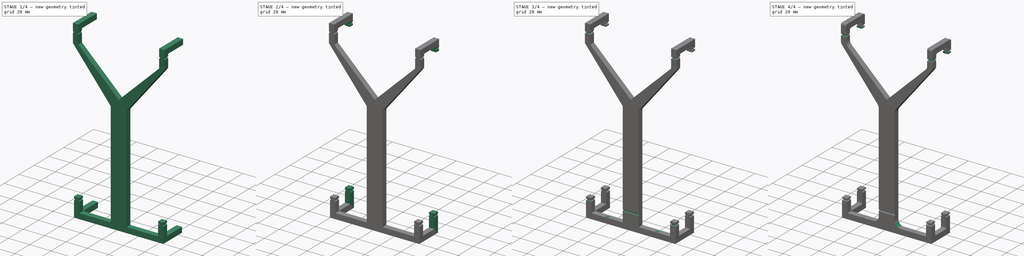
[diagram: build sequence overview — one tinted view per stage of 4, left to right]
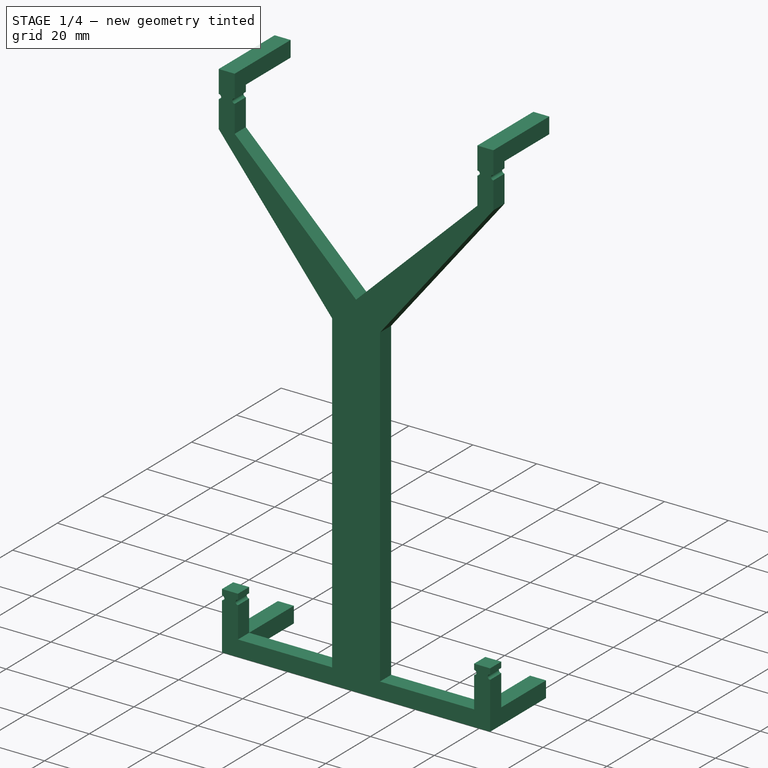
[diagram: stage 1 of 4 — iso view after this stage's code; geometry added in this stage tinted green]
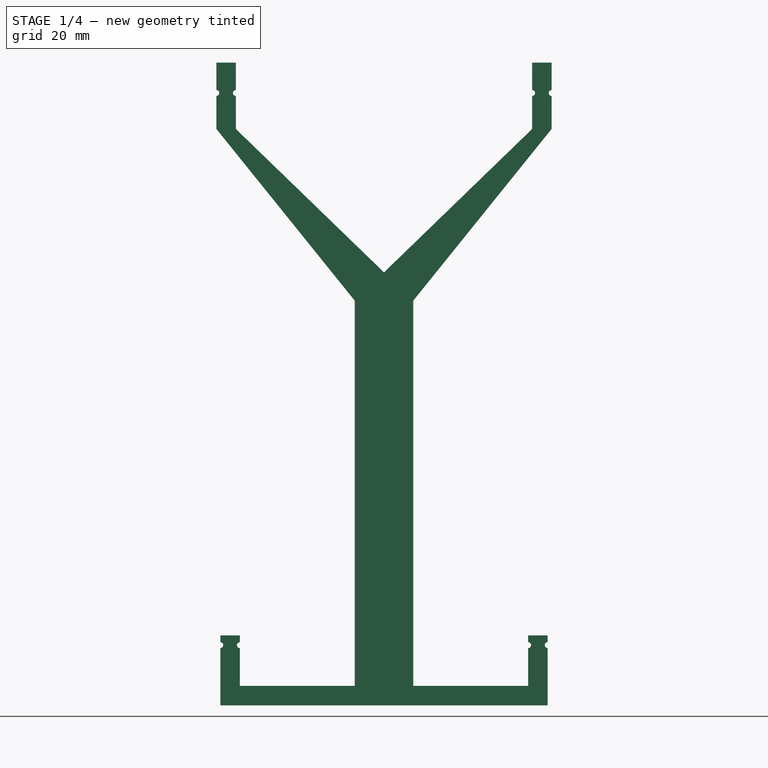
[diagram: stage 1 of 4 — front view after this stage's code; geometry added in this stage tinted green]
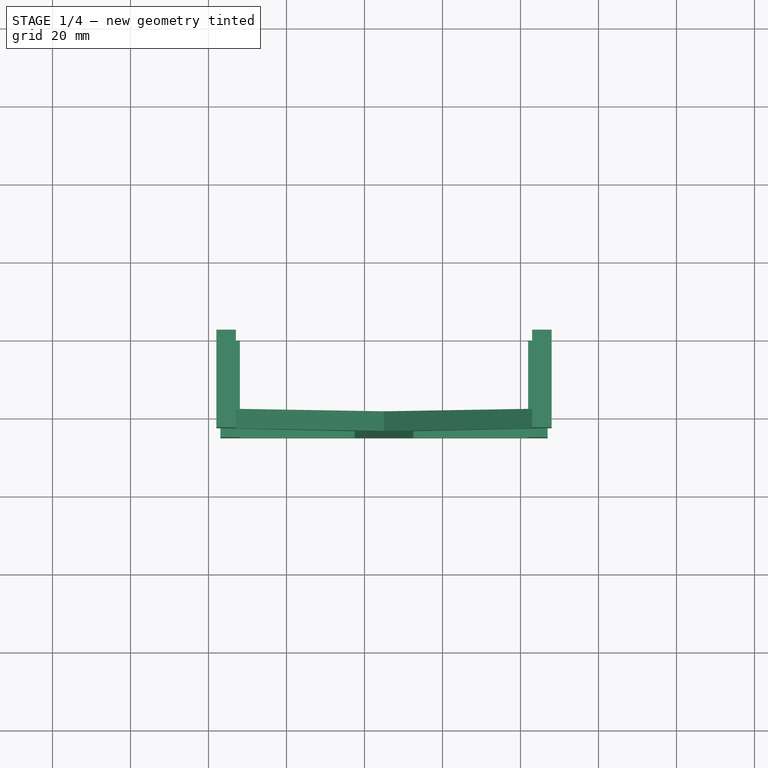
[diagram: stage 1 of 4 — top view after this stage's code; geometry added in this stage tinted green]
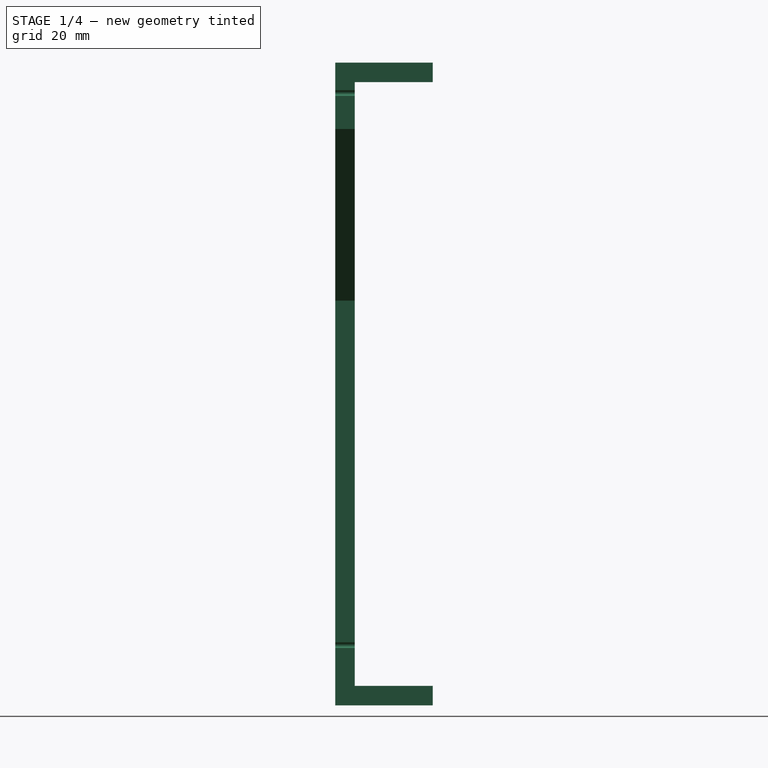
[diagram: stage 1 of 4 — right view after this stage's code; geometry added in this stage tinted green]
FCSTD DOCUMENT  (FreeCAD 1.0R39109 (Git))
Label: Stand_v2
License: All rights reserved
LicenseURL: http://en.wikipedia.org/wiki/All_rights_reserved
objects: Sketcher::SketchObject×8, PartDesign::Pad×5, PartDesign::Fillet×3, PartDesign::Body×2, PartDesign::Pocket×2, PartDesign::ShapeBinder×1, PartDesign::Hole×1
note: 52 computed .brp shape members not serialized (recipe doc carries the construction recipe); baked Part::Feature solids carry a one-line shape summary decoded from their .brp

FEATURE [Sketcher::SketchObject] Sketch
  ArcFitTolerance = 1e-06
  AttachmentSupport = -> [XZ_Plane]
  FullyConstrained = true
  MakeInternals = false
  MapMode = 5
  Placement = pos=(0,0,0) rot=(1,0,0;1.5708rad)
  sketch-geometry (16):
    g0: LineSegment StartX=0 StartY=0 StartZ=0 EndX=90 EndY=0 EndZ=0
    g1: LineSegment StartX=90 StartY=0 StartZ=0 EndX=90 EndY=150 EndZ=0
    g2: LineSegment StartX=90 StartY=150 StartZ=0 EndX=0 EndY=150 EndZ=0
    g3: LineSegment StartX=0 StartY=150 StartZ=0 EndX=0 EndY=0 EndZ=0
    g4: LineSegment [constr] StartX=3.5 StartY=145 StartZ=0 EndX=3.5 EndY=5 EndZ=0
    g5: LineSegment [constr] StartX=3.5 StartY=5 StartZ=0 EndX=86.5 EndY=5 EndZ=0
    g6: LineSegment [constr] StartX=86.5 StartY=5 StartZ=0 EndX=86.5 EndY=145 EndZ=0
    g7: LineSegment [constr] StartX=86.5 StartY=145 StartZ=0 EndX=3.5 EndY=145 EndZ=0
    g8: LineSegment [constr] StartX=86.5 StartY=145 StartZ=0 EndX=86.5 EndY=150 EndZ=0
    g9: LineSegment [constr] StartX=86.5 StartY=5 StartZ=0 EndX=86.5 EndY=0 EndZ=0
    g10: LineSegment [constr] StartX=3.5 StartY=145 StartZ=0 EndX=0 EndY=145 EndZ=0
    g11: LineSegment [constr] StartX=86.5 StartY=145 StartZ=0 EndX=90 EndY=145 EndZ=0
    g12: Circle CenterX=3.5 CenterY=145 CenterZ=0 NormalX=0 NormalY=0 NormalZ=1 AngleXU=0 Radius=1.5
    g13: Circle CenterX=86.5 CenterY=145 CenterZ=0 NormalX=0 NormalY=0 NormalZ=1 AngleXU=0 Radius=1.5
    g14: Circle CenterX=86.5 CenterY=5 CenterZ=0 NormalX=0 NormalY=0 NormalZ=1 AngleXU=0 Radius=1.5
    g15: Circle CenterX=3.5 CenterY=5 CenterZ=0 NormalX=0 NormalY=0 NormalZ=1 AngleXU=0 Radius=1.5
  constraints (43):
    c: Coincident(g0,g1)
    c: Coincident(g1,g2)
    c: Coincident(g2,g3)
    c: Coincident(g3,g0)
    c: Horizontal(g0)
    c: Horizontal(g2)
    c: Vertical(g1)
    c: Vertical(g3)
    c: Coincident(g0,g-1)
    c: DistanceX(g2,g2) = 90
    c: DistanceY(g3,g3) = 150
    c: Coincident(g4,g5)
    c: Coincident(g5,g6)
    c: Coincident(g6,g7)
    c: Coincident(g7,g4)
    c: Vertical(g4)
    c: Vertical(g6)
    c: Horizontal(g5)
    c: Horizontal(g7)
    c: Distance(g2,g7) = 5
    c: Coincident(g8,g6)
    c: PointOnObject(g8,g2)
    c: Vertical(g8)
    c: Coincident(g9,g5)
    c: PointOnObject(g9,g0)
    c: Vertical(g9)
    c: Equal(g9,g8)
    c: Coincident(g10,g4)
    c: PointOnObject(g10,g3)
    c: Horizontal(g10)
    c: Coincident(g11,g6)
    c: PointOnObject(g11,g1)
    c: Horizontal(g11)
    c: Equal(g10,g11)
    c: Distance(g11,g11) = 3.5
    c: Coincident(g12,g4)
    c: Coincident(g13,g6)
    c: Coincident(g14,g5)
    c: Coincident(g15,g4)
    c: Diameter(g15) = 3
    c: Equal(g15,g14)
    c: Equal(g14,g13)
    c: Equal(g13,g12)
FEATURE [PartDesign::Pad] Pad
  Direction = (0,-1,2e-16)
  Length = 1
  Length2 = 10
  Placement = pos=(0,0,0) rot=(1,0,0;1.5708rad)
  Profile = -> Sketch
  ReferenceAxis = -> Sketch [N_Axis]
  Refine = true
  Suppressed = false
  Type = 0
FEATURE [PartDesign::Body] Body  label="Platine"
  AllowCompound = false
  Group = -> [Sketch,Pad]
  Origin = -> Origin
  Placement = pos=(0,8,0) rot=(0,0,1;0rad)
  Tip = -> Pad
FEATURE [PartDesign::ShapeBinder] ShapeBinder
  Support = -> [Pad]
  TraceSupport = false
FEATURE [Sketcher::SketchObject] Sketch001
  ArcFitTolerance = 1e-06
  AttachmentSupport = -> [XZ_Plane001]
  ExternalGeometry = -> [ShapeBinder]
  FullyConstrained = false
  MakeInternals = false
  MapMode = 5
  Placement = pos=(0,0,0) rot=(1,0,0;1.5708rad)
  sketch-geometry (103):
    g0: LineSegment [constr] StartX=37.5 StartY=96.7528 StartZ=0 EndX=52.5 EndY=96.7528 EndZ=0
    g1: GeomPoint [constr] X=45 Y=1.08448 Z=0
    g2: LineSegment [constr] StartX=37.5 StartY=96.7528 StartZ=0 EndX=2.01994 EndY=140.78 EndZ=0
    g3: LineSegment [constr] StartX=2.01994 StartY=140.78 StartZ=0 EndX=7.01994 EndY=140.78 EndZ=0
    g4: LineSegment [constr] StartX=7.01994 StartY=140.78 StartZ=0 EndX=52.5 EndY=96.7528 EndZ=0
    g5: LineSegment [constr] StartX=2.01994 StartY=140.78 StartZ=0 EndX=7.01994 EndY=140.78 EndZ=0
    g6: LineSegment [constr] StartX=7.01994 StartY=140.78 StartZ=0 EndX=7.01994 EndY=157.78 EndZ=0
    g7: LineSegment [constr] StartX=7.01994 StartY=157.78 StartZ=0 EndX=2.01994 EndY=157.78 EndZ=0
    g8: LineSegment [constr] StartX=2.01994 StartY=157.78 StartZ=0 EndX=2.01994 EndY=140.78 EndZ=0
    g9: LineSegment [constr] StartX=37.5 StartY=96.7528 StartZ=0 EndX=82.9801 EndY=140.78 EndZ=0
    g10: LineSegment [constr] StartX=82.9801 StartY=140.78 StartZ=0 EndX=87.9801 EndY=140.78 EndZ=0
    g11: LineSegment [constr] StartX=87.9801 StartY=140.78 StartZ=0 EndX=52.5 EndY=96.7528 EndZ=0
    g12: LineSegment [constr] StartX=82.9801 StartY=140.78 StartZ=0 EndX=82.9801 EndY=157.78 EndZ=0
    g13: LineSegment [constr] StartX=82.9801 StartY=157.78 StartZ=0 EndX=87.9801 EndY=157.78 EndZ=0
    g14: LineSegment [constr] StartX=87.9801 StartY=157.78 StartZ=0 EndX=87.9801 EndY=140.78 EndZ=0
    g15: LineSegment [constr] StartX=37.5 StartY=-2 StartZ=0 EndX=52.5 EndY=-2 EndZ=0
    g16: LineSegment StartX=37.5 StartY=-2 StartZ=0 EndX=37.5 EndY=96.7528 EndZ=0
    g17: LineSegment StartX=37.5 StartY=96.7528 StartZ=0 EndX=2.01994 EndY=140.78 EndZ=0
    g18: LineSegment [constr] StartX=2.01994 StartY=140.78 StartZ=0 EndX=2.01994 EndY=157.78 EndZ=0
    g19: LineSegment StartX=2.01994 StartY=157.78 StartZ=0 EndX=7.01994 EndY=157.78 EndZ=0
    g20: LineSegment [constr] StartX=7.01994 StartY=157.78 StartZ=0 EndX=7.01994 EndY=140.78 EndZ=0
    g21: LineSegment StartX=7.01994 StartY=140.78 StartZ=0 EndX=45 EndY=104.013 EndZ=0
    g22: LineSegment StartX=45 StartY=104.013 StartZ=0 EndX=82.9801 EndY=140.78 EndZ=0
    g23: LineSegment StartX=82.9801 StartY=157.78 StartZ=0 EndX=87.9801 EndY=157.78 EndZ=0
    g24: LineSegment [constr] StartX=7.01994 StartY=157.78 StartZ=0 EndX=82.9801 EndY=157.78 EndZ=0
    g25: LineSegment [constr] StartX=82.9801 StartY=140.78 StartZ=0 EndX=7.01994 EndY=140.78 EndZ=0
    g26: LineSegment StartX=87.9801 StartY=140.78 StartZ=0 EndX=52.5 EndY=96.7528 EndZ=0
    g27: LineSegment StartX=52.5 StartY=96.7528 StartZ=0 EndX=52.5 EndY=-2 EndZ=0
    g28: LineSegment [constr] StartX=37.5 StartY=4.16896 StartZ=0 EndX=52.5 EndY=4.16896 EndZ=0
    g29: LineSegment [constr] StartX=37.5 StartY=-2 StartZ=0 EndX=52.5 EndY=4.16896 EndZ=0
    g30: LineSegment [constr] StartX=37.5 StartY=4.16896 StartZ=0 EndX=52.5 EndY=-2 EndZ=0
    g31: LineSegment [constr] StartX=3.03988 StartY=5.94077 StartZ=0 EndX=3.03988 EndY=-7 EndZ=0
    g32: LineSegment [constr] StartX=86.9601 StartY=-0.810335 StartZ=0 EndX=86.9601 EndY=-7 EndZ=0
    g33: LineSegment [constr] StartX=86.9601 StartY=-7 StartZ=0 EndX=3.03988 EndY=-7 EndZ=0
    g34: LineSegment StartX=3.03988 StartY=-2 StartZ=0 EndX=3.03988 EndY=-7 EndZ=0
    g35: LineSegment StartX=3.03988 StartY=-7 StartZ=0 EndX=86.9601 EndY=-7 EndZ=0
    g36: LineSegment StartX=86.9601 StartY=-7 StartZ=0 EndX=86.9601 EndY=-2 EndZ=0
    g37: LineSegment [constr] StartX=86.9601 StartY=-2 StartZ=0 EndX=52.5 EndY=-2 EndZ=0
    g38: LineSegment [constr] StartX=37.5 StartY=-2 StartZ=0 EndX=3.03988 EndY=-2 EndZ=0
    g39: LineSegment [constr] StartX=86.9601 StartY=-2 StartZ=0 EndX=86.9601 EndY=10.9408 EndZ=0
    g40: LineSegment [constr] StartX=86.9601 StartY=10.9408 StartZ=0 EndX=81.9601 EndY=10.9408 EndZ=0
    g41: LineSegment [constr] StartX=81.9601 StartY=10.9408 StartZ=0 EndX=81.9601 EndY=-2 EndZ=0
    g42: LineSegment [constr] StartX=81.9601 StartY=-2 StartZ=0 EndX=86.9601 EndY=-2 EndZ=0
    g43: LineSegment [constr] StartX=3.79422 StartY=-2 StartZ=0 EndX=8.03988 EndY=-2 EndZ=0
    g44: LineSegment [constr] StartX=8.03988 StartY=-2 StartZ=0 EndX=8.03988 EndY=10.9408 EndZ=0
    g45: LineSegment [constr] StartX=8.03988 StartY=10.9408 StartZ=0 EndX=81.9601 EndY=10.9408 EndZ=0
    g46: LineSegment [constr] StartX=86.9601 StartY=-2 StartZ=0 EndX=86.9601 EndY=10.9408 EndZ=0
    g47: LineSegment StartX=86.9601 StartY=10.9408 StartZ=0 EndX=81.9601 EndY=10.9408 EndZ=0
    g48: LineSegment StartX=81.9601 StartY=-2 StartZ=0 EndX=52.5 EndY=-2 EndZ=0
    g49: LineSegment StartX=37.5 StartY=-2 StartZ=0 EndX=8.03988 EndY=-2 EndZ=0
    g50: LineSegment [constr] StartX=8.03988 StartY=-2 StartZ=0 EndX=8.03988 EndY=10.9408 EndZ=0
    g51: LineSegment StartX=8.03988 StartY=10.9408 StartZ=0 EndX=3.03988 EndY=10.9408 EndZ=0
    g52: LineSegment [constr] StartX=3.03988 StartY=10.9408 StartZ=0 EndX=3.03988 EndY=-2 EndZ=0
    g53: LineSegment [constr] StartX=81.9601 StartY=-2 StartZ=0 EndX=81.9601 EndY=10.9408 EndZ=0
    g54: GeomPoint [constr] X=86.9601 Y=5.94077 Z=0
    g55: LineSegment [constr] StartX=86.9601 StartY=5.94077 StartZ=0 EndX=81.9601 EndY=10.9408 EndZ=0
    g56: GeomPoint [constr] X=82.9801 Y=145.78 Z=0
    g57: GeomPoint [constr] X=7.01994 Y=145.78 Z=0
    g58: LineSegment [constr] StartX=2.01994 StartY=140.78 StartZ=0 EndX=7.01994 EndY=145.78 EndZ=0
    g59: Circle [constr] CenterX=3.5 CenterY=145 CenterZ=0 NormalX=0 NormalY=0 NormalZ=1 AngleXU=0 Radius=0.779617
    g60: LineSegment [constr] StartX=3.5 StartY=5 StartZ=0 EndX=3.5 EndY=145 EndZ=0
    g61: LineSegment [constr] StartX=3.5 StartY=145 StartZ=0 EndX=86.5 EndY=145 EndZ=0
    g62: LineSegment [constr] StartX=86.5 StartY=5 StartZ=0 EndX=3.5 EndY=145 EndZ=0
    g63: GeomPoint [constr] X=4.51994 Y=143.28 Z=0
    g64: LineSegment [constr] StartX=8.03988 StartY=10.9408 StartZ=0 EndX=3.03988 EndY=5.94077 EndZ=0
    g65: GeomPoint [constr] X=5.53988 Y=8.44077 Z=0
    g66: LineSegment [constr] StartX=82.9801 StartY=145.78 StartZ=0 EndX=87.9801 EndY=140.78 EndZ=0
    g67: GeomPoint [constr] X=84.4601 Y=8.44077 Z=0
    g68: LineSegment [constr] StartX=3.5 StartY=5 StartZ=0 EndX=86.5 EndY=145 EndZ=0
    g69: GeomPoint [constr] X=85.4801 Y=143.28 Z=0
    g70: GeomPoint [constr] X=45 Y=10.9408 Z=0
    g71: LineSegment [constr] StartX=45 StartY=1.08448 StartZ=0 EndX=45 EndY=10.9408 EndZ=0
    g72: LineSegment [constr] StartX=7.01994 StartY=152.78 StartZ=0 EndX=2.01994 EndY=152.78 EndZ=0
    g73: LineSegment [constr] StartX=7.01994 StartY=145.78 StartZ=0 EndX=2.01994 EndY=145.78 EndZ=0
    g74: LineSegment StartX=7.01994 StartY=140.78 StartZ=0 EndX=7.01994 EndY=149.25 EndZ=0
    g75: LineSegment StartX=7.01994 StartY=150.75 StartZ=0 EndX=7.01994 EndY=157.78 EndZ=0
    g76: LineSegment StartX=2.01994 StartY=150.75 StartZ=0 EndX=2.01994 EndY=157.78 EndZ=0
    g77: LineSegment StartX=2.01994 StartY=140.78 StartZ=0 EndX=2.01994 EndY=149.25 EndZ=0
    g78: LineSegment StartX=82.9801 StartY=157.78 StartZ=0 EndX=82.9801 EndY=150.75 EndZ=0
    g79: LineSegment StartX=87.9801 StartY=157.78 StartZ=0 EndX=87.9801 EndY=150.75 EndZ=0
    g80: LineSegment [constr] StartX=87.9801 StartY=150.75 StartZ=0 EndX=2.01994 EndY=150.75 EndZ=0
    g81: LineSegment StartX=87.9801 StartY=140.78 StartZ=0 EndX=87.9801 EndY=149.25 EndZ=0
    g82: LineSegment StartX=82.9801 StartY=140.78 StartZ=0 EndX=82.9801 EndY=149.25 EndZ=0
    g83: LineSegment [constr] StartX=87.9801 StartY=149.25 StartZ=0 EndX=2.01994 EndY=149.25 EndZ=0
    g84: ArcOfCircle CenterX=2.01994 CenterY=150 CenterZ=0 NormalX=0 NormalY=0 NormalZ=1 AngleXU=0 Radius=0.75 StartAngle=4.71239 EndAngle=7.85398
    g85: ArcOfCircle CenterX=7.01994 CenterY=150 CenterZ=0 NormalX=0 NormalY=0 NormalZ=1 AngleXU=0 Radius=0.75 StartAngle=1.5708 EndAngle=4.71239
    g86: ArcOfCircle CenterX=82.9801 CenterY=150 CenterZ=0 NormalX=0 NormalY=0 NormalZ=1 AngleXU=0 Radius=0.75 StartAngle=4.71239 EndAngle=7.85398
    g87: ArcOfCircle CenterX=87.9801 CenterY=150 CenterZ=0 NormalX=0 NormalY=0 NormalZ=1 AngleXU=0 Radius=0.75 StartAngle=1.5708 EndAngle=4.71239
    g88: LineSegment StartX=86.9601 StartY=10.9408 StartZ=0 EndX=86.9601 EndY=9.19077 EndZ=0
    g89: LineSegment StartX=81.9601 StartY=10.9408 StartZ=0 EndX=81.9601 EndY=9.19077 EndZ=0
    g90: LineSegment StartX=86.9601 StartY=-2 StartZ=0 EndX=86.9601 EndY=7.69077 EndZ=0
    g91: LineSegment StartX=81.9601 StartY=-2 StartZ=0 EndX=81.9601 EndY=7.69077 EndZ=0
    g92: LineSegment StartX=8.03988 StartY=-2 StartZ=0 EndX=8.03988 EndY=7.69077 EndZ=0
    g93: LineSegment StartX=3.03988 StartY=-2 StartZ=0 EndX=3.03988 EndY=7.69077 EndZ=0
    g94: LineSegment StartX=3.03988 StartY=10.9408 StartZ=0 EndX=3.03988 EndY=9.19077 EndZ=0
    g95: LineSegment StartX=8.03988 StartY=10.9408 StartZ=0 EndX=8.03988 EndY=9.19077 EndZ=0
    g96: LineSegment [constr] StartX=3.03988 StartY=9.19077 StartZ=0 EndX=86.9601 EndY=9.19077 EndZ=0
    g97: LineSegment [constr] StartX=86.9601 StartY=7.69077 StartZ=0 EndX=3.03988 EndY=7.69077 EndZ=0
    g98: ArcOfCircle CenterX=81.9601 CenterY=8.44077 CenterZ=0 NormalX=0 NormalY=0 NormalZ=1 AngleXU=0 Radius=0.75 StartAngle=4.71239 EndAngle=7.85398
    g99: ArcOfCircle CenterX=3.03988 CenterY=8.44077 CenterZ=0 NormalX=0 NormalY=0 NormalZ=1 AngleXU=0 Radius=0.75 StartAngle=4.71239 EndAngle=7.85398
    g100: ArcOfCircle CenterX=86.9601 CenterY=8.44077 CenterZ=0 NormalX=0 NormalY=0 NormalZ=1 AngleXU=0 Radius=0.75 StartAngle=1.5708 EndAngle=4.71239
    g101: ArcOfCircle CenterX=8.03988 CenterY=8.44077 CenterZ=0 NormalX=0 NormalY=0 NormalZ=1 AngleXU=0 Radius=0.75 StartAngle=1.5708 EndAngle=4.71239
    g102: LineSegment [constr] StartX=3.03988 StartY=8.44077 StartZ=0 EndX=8.03988 EndY=8.44077 EndZ=0
  constraints (255):
    c: Horizontal(g0)
    c: Horizontal(g3)
    c: Coincident(g4,g3)
    c: Coincident(g4,g0)
    c: Horizontal(g7)
    c: Coincident(g10,g9)
    c: Horizontal(g10)
    c: Coincident(g11,g10)
    c: Coincident(g11,g0)
    c: Coincident(g12,g9)
    c: Coincident(g13,g12)
    c: Horizontal(g13)
    c: Coincident(g14,g10)
    c: Vertical(g14)
    c: Vertical(g12)
    c: Distance(g0,g0) = 15
    c: Horizontal(g15)
    c: Coincident(g17,g2)
    c: Coincident(g18,g2)
    c: Coincident(g18,g7)
    c: Coincident(g19,g7)
    c: Coincident(g19,g6)
    c: Coincident(g21,g3)
    c: PointOnObject(g21,g4)
    c: PointOnObject(g21,g9)
    c: Coincident(g22,g21)
    c: Coincident(g22,g9)
    c: Coincident(g23,g12)
    c: Coincident(g23,g14)
    c: Horizontal(g23)
    c: PointOnObject(g13,g14)
    c: Coincident(g24,g6)
    c: Coincident(g24,g12)
    c: Horizontal(g24)
    c: Coincident(g25,g9)
    c: Coincident(g25,g3)
    c: Coincident(g26,g10)
    c: Coincident(g26,g0)
    c: Coincident(g27,g0)
    c: PointOnObject(g28,g16)
    c: PointOnObject(g28,g27)
    c: Horizontal(g28)
    c: Coincident(g29,g28)
    c: Coincident(g30,g28)
    c: PointOnObject(g1,g30)
    c: Vertical(g31)
    c: Vertical(g32)
    c: Coincident(g33,g32)
    c: Coincident(g33,g31)
    c: Horizontal(g33)
    c: Distance(g36,g32) = 5
    c: Coincident(g34,g31)
    c: Coincident(g35,g34)
    c: Coincident(g35,g32)
    c: Coincident(g36,g32)
    c: Vertical(g36)
    c: PointOnObject(g34,g31)
    c: Equal(g23,g19)
    c: Coincident(g9,g2)
    c: Coincident(g9,g16)
    c: Coincident(g9,g17)
    c: Coincident(g0,g2)
    c: Vertical(g16)
    c: Vertical(g27)
    c: PointOnObject(g1,g29)
    c: Coincident(g15,g27)
    c: Coincident(g15,g16)
    c: Coincident(g29,g15)
    c: Coincident(g30,g15)
    c: Coincident(g37,g36)
    c: Coincident(g37,g15)
    c: Horizontal(g37)
    c: Coincident(g38,g15)
    c: Coincident(g38,g34)
    c: Horizontal(g38)
    c: Coincident(g39,g40)
    c: Coincident(g40,g41)
    c: Coincident(g41,g42)
    c: Coincident(g42,g39)
    c: Vertical(g39)
    c: Vertical(g41)
    c: Horizontal(g40)
    c: Horizontal(g42)
    c: Coincident(g39,g36)
    c: Coincident(g43,g44)
    c: Horizontal(g43)
    c: Vertical(g44)
    c: Coincident(g45,g44)
    c: Coincident(g45,g40)
    c: Horizontal(g45)
    c: PointOnObject(g43,g38)
    c: Coincident(g46,g36)
    c: Coincident(g46,g39)
    c: Coincident(g47,g39)
    c: Coincident(g47,g40)
    c: Coincident(g48,g41)
    c: Coincident(g48,g15)
    c: Coincident(g49,g15)
    c: Coincident(g49,g43)
    c: Coincident(g50,g43)
    c: Coincident(g50,g44)
    c: Coincident(g52,g34)
    c: Coincident(g53,g41)
    c: Coincident(g53,g40)
    c: PointOnObject(g54,g46)
    c: DistanceY(g54,g39) = 5
    c: Coincident(g55,g54)
    c: Coincident(g55,g40)
    c: Distance(g56,g9) = 5
    c: Distance(g56,g12) = 12
    c: Horizontal(g25)
    c: Coincident(g58,g2)
    c: Coincident(g58,g57)
    c: DistanceY(g3,g57) = 5
    c: Coincident(g66,g56)
    c: Coincident(g66,g10)
    c: DistanceX(g47,g47) = 5
    c: PointOnObject(g67,g62)
    c: Distance(g62,g67) = 4
    c: PointOnObject(g67,g55)
    c: Coincident(g51,g44)
    c: Coincident(g51,g52)
    c: Horizontal(g51)
    c: Vertical(g52)
    c: Coincident(g64,g44)
    c: Coincident(g64,g31)
    c: DistanceY(g31,g51) = 5
    c: Distance(g51,g51) = 5
    c: Symmetric(g44,g31,g65)
    c: Distance(g60,g65) = 4
    c: Coincident(g6,g20)
    c: Coincident(g7,g6)
    c: Vertical(g20)
    c: Coincident(g5,g20)
    c: Vertical(g18)
    c: Coincident(g3,g6)
    c: Coincident(g5,g3)
    c: Coincident(g8,g2)
    c: Coincident(g5,g2)
    c: Coincident(g3,g2)
    c: Distance(g19,g19) = 5
    c: Coincident(g8,g7)
    c: PointOnObject(g63,g62)
    c: Coincident(g62,g59)
    c: Coincident(g59,g60)
    c: Coincident(g61,g59)
    c: Horizontal(g61)
    c: Vertical(g60)
    c: Coincident(g61,g-5)
    c: PointOnObject(g57,g20)
    c: Symmetric(g2,g57,g63)
    c: Coincident(g62,g-3)
    c: Coincident(g60,g-4)
    c: DistanceY(g36,g62) = 7
    c: Coincident(g68,g60)
    c: Coincident(g68,g61)
    c: PointOnObject(g65,g68)
    c: PointOnObject(g69,g68)
    c: Distance(g59,g63) = 2
    c: Symmetric(g10,g56,g69)
    c: Symmetric(g45,g45,g70)
    c: Coincident(g71,g1)
    c: Coincident(g71,g70)
    c: Vertical(g71)
    c: PointOnObject(g72,g20)
    c: PointOnObject(g72,g18)
    c: Horizontal(g72)
    c: Distance(g72,g7) = 5
    c: Coincident(g73,g57)
    c: PointOnObject(g73,g8)
    c: Horizontal(g73)
    c: Tangent(g73,g59)
    c: PointOnObject(g75,g6)
    c: PointOnObject(g76,g8)
    c: PointOnObject(g77,g8)
    c: Coincident(g74,g3)
    c: Vertical(g74)
    c: Coincident(g75,g6)
    c: Coincident(g76,g7)
    c: Coincident(g77,g2)
    c: Coincident(g78,g12)
    c: PointOnObject(g78,g12)
    c: Coincident(g79,g13)
    c: PointOnObject(g79,g14)
    c: Coincident(g80,g79)
    c: Coincident(g80,g76)
    c: Horizontal(g80)
    c: PointOnObject(g75,g80)
    c: PointOnObject(g78,g80)
    c: Coincident(g82,g9)
    c: PointOnObject(g82,g12)
    c: Coincident(g83,g81)
    c: Coincident(g83,g77)
    c: Horizontal(g83)
    c: PointOnObject(g82,g83)
    c: PointOnObject(g81,g14)
    c: PointOnObject(g74,g83)
    c: PointOnObject(g84,g8)
    c: Coincident(g84,g76)
    c: Coincident(g84,g77)
    c: PointOnObject(g85,g6)
    c: Coincident(g85,g75)
    c: Coincident(g85,g74)
    c: PointOnObject(g86,g12)
    c: Coincident(g86,g78)
    c: Coincident(g86,g82)
    c: PointOnObject(g87,g14)
    c: Coincident(g87,g79)
    c: Coincident(g87,g81)
    c: Distance(g77,g76) = 1.5
    c: DistanceY(g59,g84) = 5
    c: Coincident(g88,g39)
    c: PointOnObject(g88,g39)
    c: Coincident(g89,g40)
    c: PointOnObject(g89,g41)
    c: PointOnObject(g90,g39)
    c: Coincident(g91,g41)
    c: PointOnObject(g91,g41)
    c: Coincident(g92,g43)
    c: PointOnObject(g92,g44)
    c: Coincident(g93,g34)
    c: PointOnObject(g93,g52)
    c: Coincident(g94,g51)
    c: PointOnObject(g94,g52)
    c: Coincident(g95,g44)
    c: PointOnObject(g95,g44)
    c: Coincident(g96,g94)
    c: Coincident(g96,g88)
    c: Horizontal(g96)
    c: Coincident(g97,g90)
    c: Coincident(g97,g93)
    c: Horizontal(g97)
    c: PointOnObject(g92,g97)
    c: PointOnObject(g91,g97)
    c: PointOnObject(g89,g96)
    c: PointOnObject(g95,g96)
    c: PointOnObject(g98,g41)
    c: Coincident(g98,g91)
    c: Coincident(g98,g89)
    c: PointOnObject(g99,g31)
    c: Coincident(g99,g94)
    c: Coincident(g99,g93)
    c: PointOnObject(g100,g39)
    c: Coincident(g100,g90)
    c: Coincident(g100,g88)
    c: PointOnObject(g101,g44)
    c: Coincident(g101,g95)
    c: Coincident(g101,g92)
    c: Equal(g101,g85)
    c: Coincident(g102,g99)
    c: Coincident(g102,g101)
    c: PointOnObject(g65,g102)
    c: Coincident(g81,g10)
    c: PointOnObject(g56,g82)
    c: PointOnObject(g90,g37)
FEATURE [PartDesign::Pad] Pad001
  Direction = (0,-1,2e-16)
  Length = 5
  Length2 = 10
  Placement = pos=(0,0,0) rot=(1,0,0;1.5708rad)
  Profile = -> Sketch001
  ReferenceAxis = -> Sketch001 [N_Axis]
  Refine = true
  Suppressed = false
  Type = 0
FEATURE [Sketcher::SketchObject] Sketch002
  ArcFitTolerance = 1e-06
  AttachmentSupport = -> [Pad001]
  ExternalGeometry = -> [Pad001]
  FullyConstrained = true
  MakeInternals = false
  MapMode = 5
  Placement = pos=(0,1.48e-14,0) rot=(-1,0,0;1.5708rad)
  sketch-geometry (17):
    g0: LineSegment StartX=86.9601 StartY=7 StartZ=0 EndX=86.9601 EndY=2 EndZ=0
    g1: LineSegment StartX=86.9601 StartY=2 StartZ=0 EndX=81.9601 EndY=2 EndZ=0
    g2: LineSegment StartX=81.9601 StartY=2 StartZ=0 EndX=81.9601 EndY=7 EndZ=0
    g3: LineSegment StartX=81.9601 StartY=7 StartZ=0 EndX=86.9601 EndY=7 EndZ=0
    g4: LineSegment StartX=82.9801 StartY=-157.78 StartZ=0 EndX=82.9801 EndY=-152.78 EndZ=0
    g5: LineSegment StartX=82.9801 StartY=-152.78 StartZ=0 EndX=87.9801 EndY=-152.78 EndZ=0
    g6: LineSegment StartX=87.9801 StartY=-152.78 StartZ=0 EndX=87.9801 EndY=-157.78 EndZ=0
    g7: LineSegment StartX=87.9801 StartY=-157.78 StartZ=0 EndX=82.9801 EndY=-157.78 EndZ=0
    g8: LineSegment StartX=7.01994 StartY=-157.78 StartZ=0 EndX=2.01994 EndY=-157.78 EndZ=0
    g9: LineSegment StartX=2.01994 StartY=-157.78 StartZ=0 EndX=2.01994 EndY=-152.78 EndZ=0
    g10: LineSegment StartX=2.01994 StartY=-152.78 StartZ=0 EndX=7.01994 EndY=-152.78 EndZ=0
    g11: LineSegment StartX=7.01994 StartY=-152.78 StartZ=0 EndX=7.01994 EndY=-157.78 EndZ=0
    g12: LineSegment [constr] StartX=7.01994 StartY=-152.78 StartZ=0 EndX=82.9801 EndY=-152.78 EndZ=0
    g13: LineSegment StartX=8.03988 StartY=2 StartZ=0 EndX=8.03988 EndY=7 EndZ=0
    g14: LineSegment StartX=8.03988 StartY=7 StartZ=0 EndX=3.03988 EndY=7 EndZ=0
    g15: LineSegment StartX=3.03988 StartY=7 StartZ=0 EndX=3.03988 EndY=2 EndZ=0
    g16: LineSegment StartX=3.03988 StartY=2 StartZ=0 EndX=8.03988 EndY=2 EndZ=0
  constraints (44):
    c: Coincident(g0,g1)
    c: Coincident(g1,g2)
    c: Coincident(g2,g3)
    c: Coincident(g3,g0)
    c: Vertical(g0)
    c: Vertical(g2)
    c: Horizontal(g1)
    c: Horizontal(g3)
    c: Coincident(g0,g-7)
    c: Coincident(g1,g-8)
    c: Coincident(g4,g5)
    c: Coincident(g5,g6)
    c: Coincident(g6,g7)
    c: Coincident(g7,g4)
    c: Vertical(g4)
    c: Vertical(g6)
    c: Horizontal(g5)
    c: Horizontal(g7)
    c: Coincident(g4,g-6)
    c: PointOnObject(g5,g-3)
    c: Coincident(g8,g9)
    c: Coincident(g9,g10)
    c: Coincident(g10,g11)
    c: Coincident(g11,g8)
    c: Horizontal(g8)
    c: Horizontal(g10)
    c: Vertical(g9)
    c: Coincident(g8,g-5)
    c: PointOnObject(g9,g-4)
    c: Coincident(g12,g10)
    c: Coincident(g12,g4)
    c: Horizontal(g12)
    c: Vertical(g11)
    c: Distance(g6,g6) = 5
    c: Coincident(g13,g14)
    c: Coincident(g14,g15)
    c: Coincident(g15,g16)
    c: Coincident(g16,g13)
    c: Vertical(g13)
    c: Vertical(g15)
    c: Horizontal(g14)
    c: Horizontal(g16)
    c: Coincident(g13,g-10)
    c: Coincident(g14,g-9)
FEATURE [PartDesign::Pad] Pad002
  BaseFeature = -> Pad001
  Direction = (0,1,2e-16)
  Length = 20
  Length2 = 10
  Placement = pos=(0,0,0) rot=(1,0,0;1.5708rad)
  Profile = -> Sketch002
  ReferenceAxis = -> Sketch002 [N_Axis]
  Refine = true
  Suppressed = false
  Type = 0
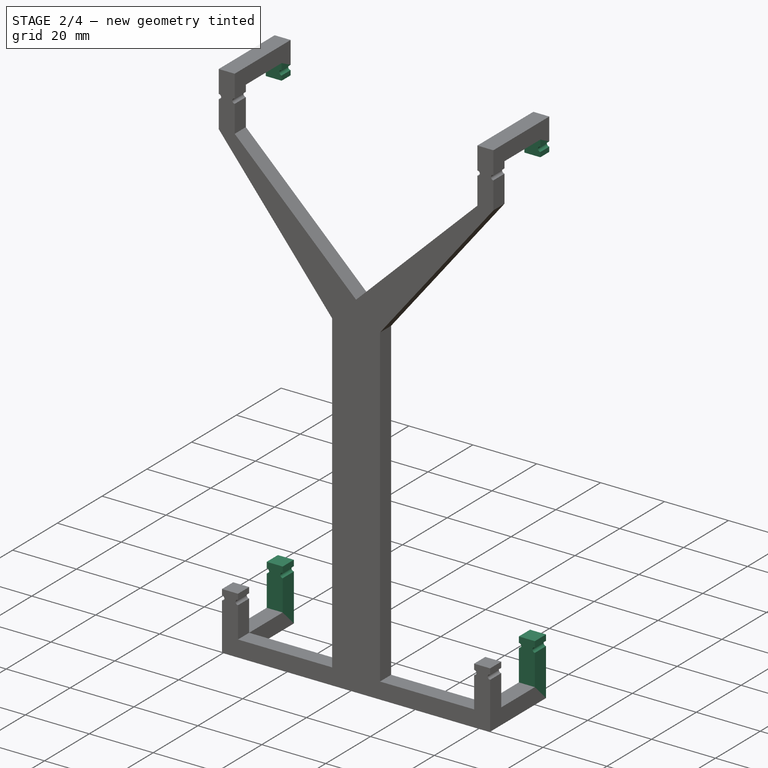
[diagram: stage 2 of 4 — iso view after this stage's code; geometry added in this stage tinted green]
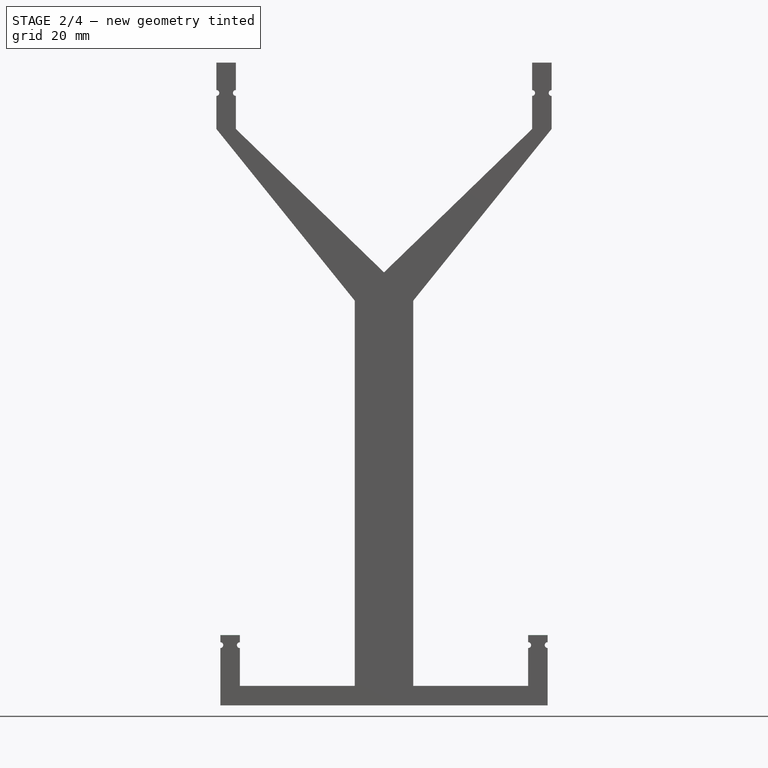
[diagram: stage 2 of 4 — front view after this stage's code; geometry added in this stage tinted green]
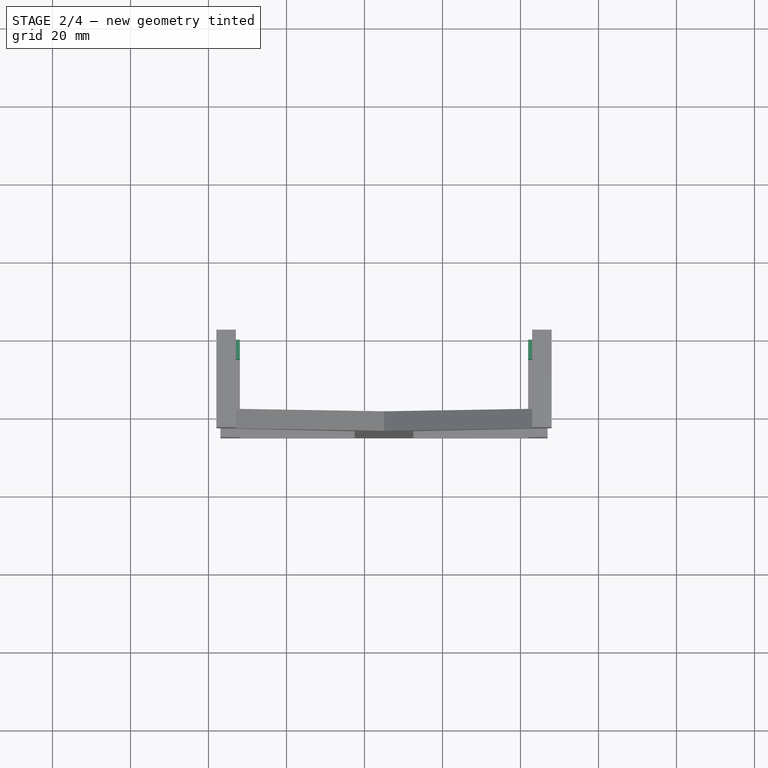
[diagram: stage 2 of 4 — top view after this stage's code; geometry added in this stage tinted green]
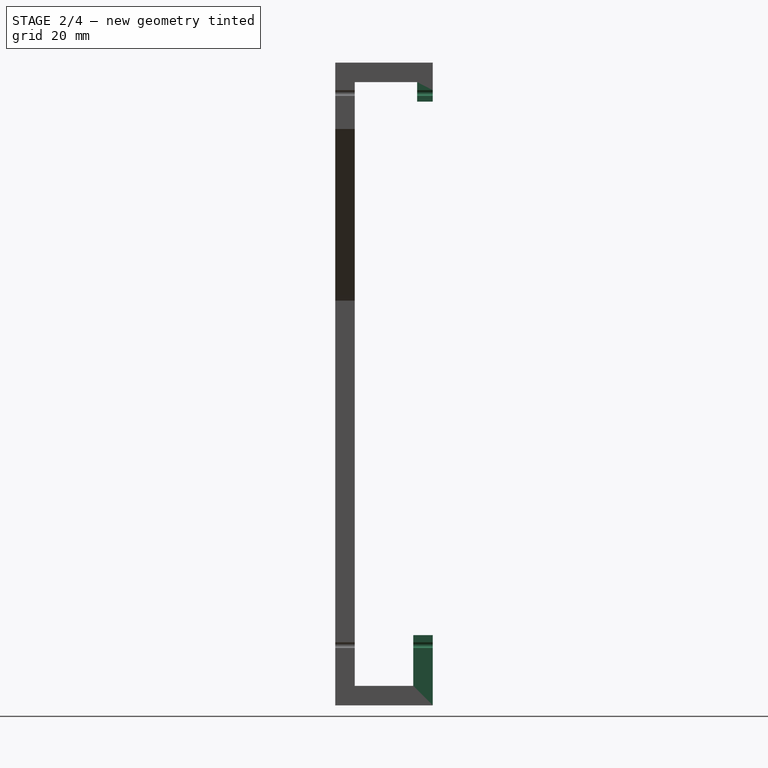
[diagram: stage 2 of 4 — right view after this stage's code; geometry added in this stage tinted green]
FEATURE [Sketcher::SketchObject] Sketch003
  ArcFitTolerance = 1e-06
  AttachmentSupport = -> [Pad002]
  ExternalGeometry = -> [Pad002]
  FullyConstrained = true
  MakeInternals = false
  MapMode = 5
  Placement = pos=(0,-3.39e-14,152.78) rot=(1,0,0;3.14159rad)
  sketch-geometry (9):
    g0: LineSegment StartX=2.01994 StartY=-20 StartZ=0 EndX=2.01994 EndY=-16 EndZ=0
    g1: LineSegment StartX=2.01994 StartY=-16 StartZ=0 EndX=7.01994 EndY=-16 EndZ=0
    g2: LineSegment StartX=7.01994 StartY=-16 StartZ=0 EndX=7.01994 EndY=-20 EndZ=0
    g3: LineSegment StartX=7.01994 StartY=-20 StartZ=0 EndX=2.01994 EndY=-20 EndZ=0
    g4: LineSegment StartX=87.9801 StartY=-20 StartZ=0 EndX=82.9801 EndY=-20 EndZ=0
    g5: LineSegment StartX=82.9801 StartY=-20 StartZ=0 EndX=82.9801 EndY=-16 EndZ=0
    g6: LineSegment StartX=82.9801 StartY=-16 StartZ=0 EndX=87.9801 EndY=-16 EndZ=0
    g7: LineSegment StartX=87.9801 StartY=-16 StartZ=0 EndX=87.9801 EndY=-20 EndZ=0
    g8: LineSegment [constr] StartX=7.01994 StartY=-16 StartZ=0 EndX=82.9801 EndY=-16 EndZ=0
  constraints (24):
    c: Coincident(g0,g1)
    c: Coincident(g1,g2)
    c: Coincident(g2,g3)
    c: Coincident(g3,g0)
    c: Vertical(g0)
    c: Vertical(g2)
    c: Horizontal(g1)
    c: Horizontal(g3)
    c: Coincident(g0,g-6)
    c: PointOnObject(g1,g-5)
    c: Coincident(g4,g5)
    c: Coincident(g5,g6)
    c: Coincident(g6,g7)
    c: Coincident(g7,g4)
    c: Horizontal(g4)
    c: Horizontal(g6)
    c: Vertical(g5)
    c: Vertical(g7)
    c: Coincident(g4,g-3)
    c: PointOnObject(g5,g-4)
    c: Coincident(g8,g1)
    c: Coincident(g8,g5)
    c: Horizontal(g8)
    c: Distance(g7,g7) = 4
FEATURE [PartDesign::Pad] Pad003
  BaseFeature = -> Pad002
  Direction = (0,0,-1)
  Length = 5
  Length2 = 10
  Placement = pos=(0,0,0) rot=(1,0,0;1.5708rad)
  Profile = -> Sketch003
  ReferenceAxis = -> Sketch003 [N_Axis]
  Refine = true
  Suppressed = false
  Type = 0
FEATURE [Sketcher::SketchObject] Sketch004
  ArcFitTolerance = 1e-06
  AttachmentSupport = -> [Pad003]
  ExternalGeometry = -> [Pad003]
  FullyConstrained = true
  MakeInternals = false
  MapMode = 5
  Placement = pos=(0,4e-16,-2) rot=(0,0,1;3.14159rad)
  sketch-geometry (9):
    g0: LineSegment StartX=-86.9601 StartY=-20 StartZ=0 EndX=-81.9601 EndY=-20 EndZ=0
    g1: LineSegment StartX=-81.9601 StartY=-20 StartZ=0 EndX=-81.9601 EndY=-15 EndZ=0
    g2: LineSegment StartX=-81.9601 StartY=-15 StartZ=0 EndX=-86.9601 EndY=-15 EndZ=0
    g3: LineSegment StartX=-86.9601 StartY=-15 StartZ=0 EndX=-86.9601 EndY=-20 EndZ=0
    g4: LineSegment StartX=-3.03988 StartY=-20 StartZ=0 EndX=-3.03988 EndY=-15 EndZ=0
    g5: LineSegment StartX=-3.03988 StartY=-15 StartZ=0 EndX=-8.03988 EndY=-15 EndZ=0
    g6: LineSegment StartX=-8.03988 StartY=-15 StartZ=0 EndX=-8.03988 EndY=-20 EndZ=0
    g7: LineSegment StartX=-8.03988 StartY=-20 StartZ=0 EndX=-3.03988 EndY=-20 EndZ=0
    g8: LineSegment [constr] StartX=-81.9601 StartY=-15 StartZ=0 EndX=-8.03988 EndY=-15 EndZ=0
  constraints (22):
    c: Coincident(g0,g1)
    c: Coincident(g1,g2)
    c: Coincident(g2,g3)
    c: Coincident(g3,g0)
    c: Horizontal(g2)
    c: Vertical(g1)
    c: Vertical(g3)
    c: Coincident(g0,g-4)
    c: Coincident(g4,g5)
    c: Coincident(g5,g6)
    c: Coincident(g6,g7)
    c: Coincident(g7,g4)
    c: Vertical(g4)
    c: Vertical(g6)
    c: Horizontal(g5)
    c: Coincident(g4,g-3)
    c: Coincident(g6,g-3)
    c: Coincident(g0,g-4)
    c: Coincident(g8,g1)
    c: Coincident(g8,g5)
    c: Horizontal(g8)
    c: Distance(g4,g4) = 5
FEATURE [PartDesign::Pad] Pad004
  BaseFeature = -> Pad003
  Direction = (0,0,1)
  Length = 13
  Length2 = 10
  Placement = pos=(0,0,0) rot=(1,0,0;1.5708rad)
  Profile = -> Sketch004
  ReferenceAxis = -> Sketch004 [N_Axis]
  Refine = true
  Suppressed = false
  Type = 0
FEATURE [Sketcher::SketchObject] Sketch005
  ArcFitTolerance = 1e-06
  AttachmentSupport = -> [Pad004]
  ExternalGeometry = -> [Pad004]
  FullyConstrained = true
  MakeInternals = false
  MapMode = 5
  Placement = pos=(3.83e-14,20,4.4e-15) rot=(-1,0,0;1.5708rad)
  sketch-geometry (8):
    g0: Circle CenterX=2.01994 CenterY=-150 CenterZ=0 NormalX=0 NormalY=0 NormalZ=1 AngleXU=0 Radius=0.75
    g1: Circle CenterX=7.01994 CenterY=-150 CenterZ=0 NormalX=0 NormalY=0 NormalZ=1 AngleXU=0 Radius=0.75
    g2: Circle CenterX=82.9801 CenterY=-150 CenterZ=0 NormalX=0 NormalY=0 NormalZ=1 AngleXU=0 Radius=0.75
    g3: Circle CenterX=87.9801 CenterY=-150 CenterZ=0 NormalX=0 NormalY=0 NormalZ=1 AngleXU=0 Radius=0.75
    g4: Circle CenterX=86.9601 CenterY=-8.44077 CenterZ=0 NormalX=0 NormalY=0 NormalZ=1 AngleXU=0 Radius=0.75
    g5: Circle CenterX=81.9601 CenterY=-8.44077 CenterZ=0 NormalX=0 NormalY=0 NormalZ=1 AngleXU=0 Radius=0.75
    g6: Circle CenterX=8.03988 CenterY=-8.44077 CenterZ=0 NormalX=0 NormalY=0 NormalZ=1 AngleXU=0 Radius=0.75
    g7: Circle CenterX=3.03988 CenterY=-8.44077 CenterZ=0 NormalX=0 NormalY=0 NormalZ=1 AngleXU=0 Radius=0.75
  constraints (16):
    c: Coincident(g0,g-10)
    c: PointOnObject(g-10,g0)
    c: Coincident(g1,g-9)
    c: Equal(g1,g-9)
    c: Coincident(g2,g-8)
    c: PointOnObject(g-8,g2)
    c: Coincident(g3,g-7)
    c: Equal(g3,g-7)
    c: Coincident(g4,g-5)
    c: Equal(g4,g-5)
    c: Coincident(g5,g-6)
    c: PointOnObject(g-6,g5)
    c: Coincident(g6,g-4)
    c: Equal(g6,g-4)
    c: Coincident(g7,g-3)
    c: PointOnObject(g-3,g7)
FEATURE [PartDesign::Pocket] Pocket
  BaseFeature = -> Pad004
  Direction = (-1.9e-15,-1,-2e-16)
  Length = 5
  Length2 = 5
  Placement = pos=(0,0,0) rot=(1,0,0;1.5708rad)
  Profile = -> Sketch005
  ReferenceAxis = -> Sketch005 [N_Axis]
  Refine = true
  Suppressed = false
  Type = 0
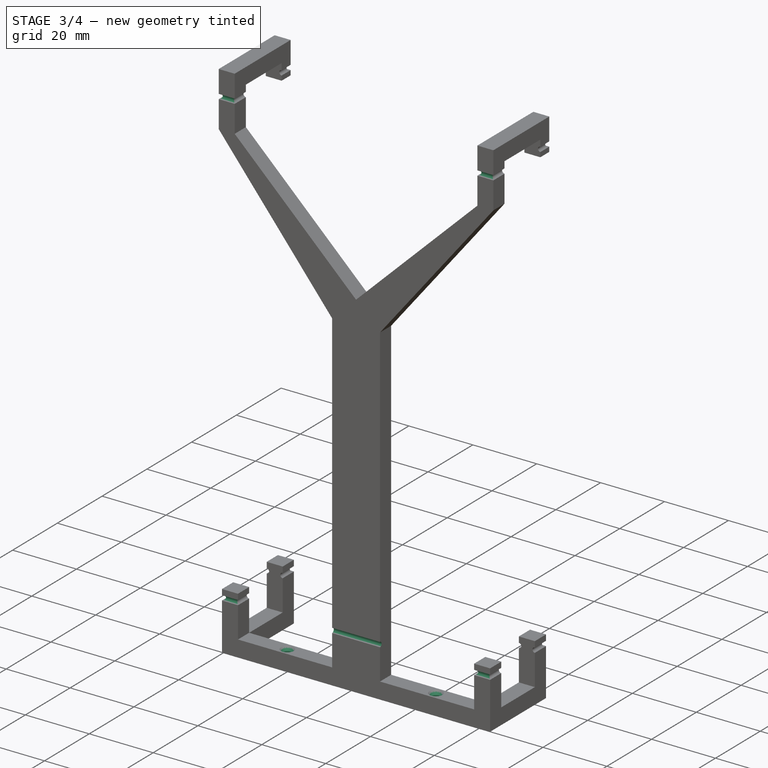
[diagram: stage 3 of 4 — iso view after this stage's code; geometry added in this stage tinted green]
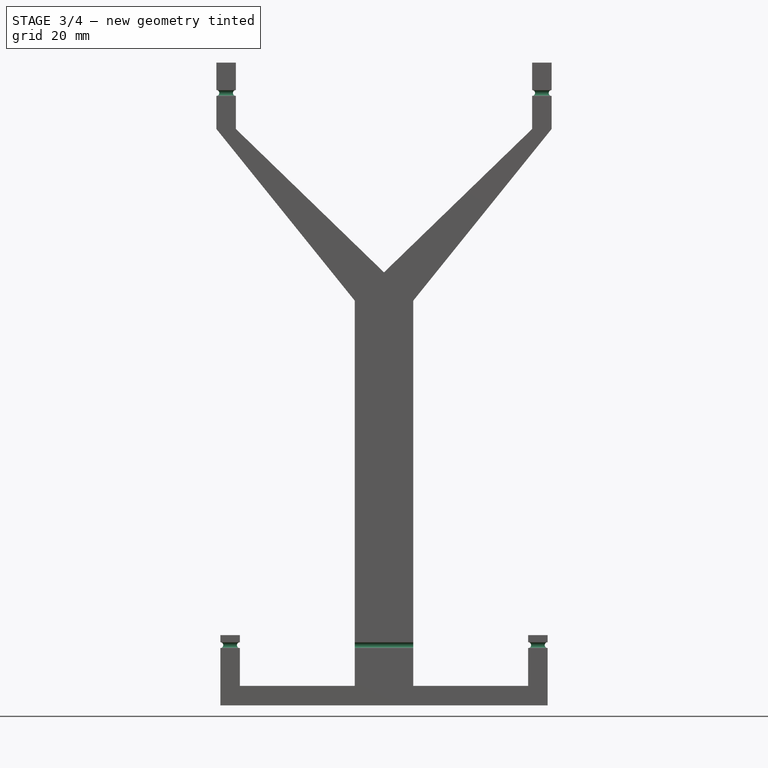
[diagram: stage 3 of 4 — front view after this stage's code; geometry added in this stage tinted green]
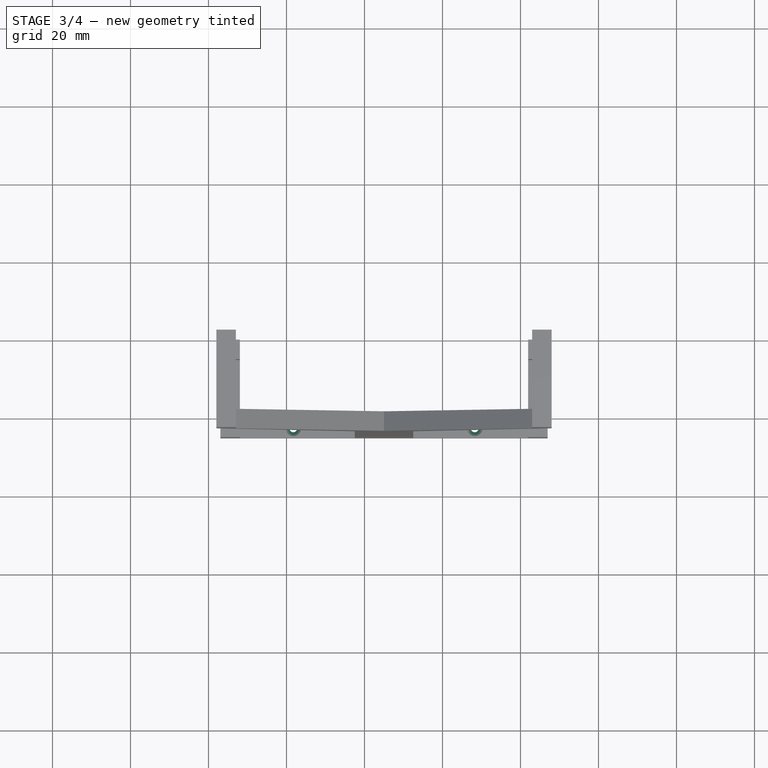
[diagram: stage 3 of 4 — top view after this stage's code; geometry added in this stage tinted green]
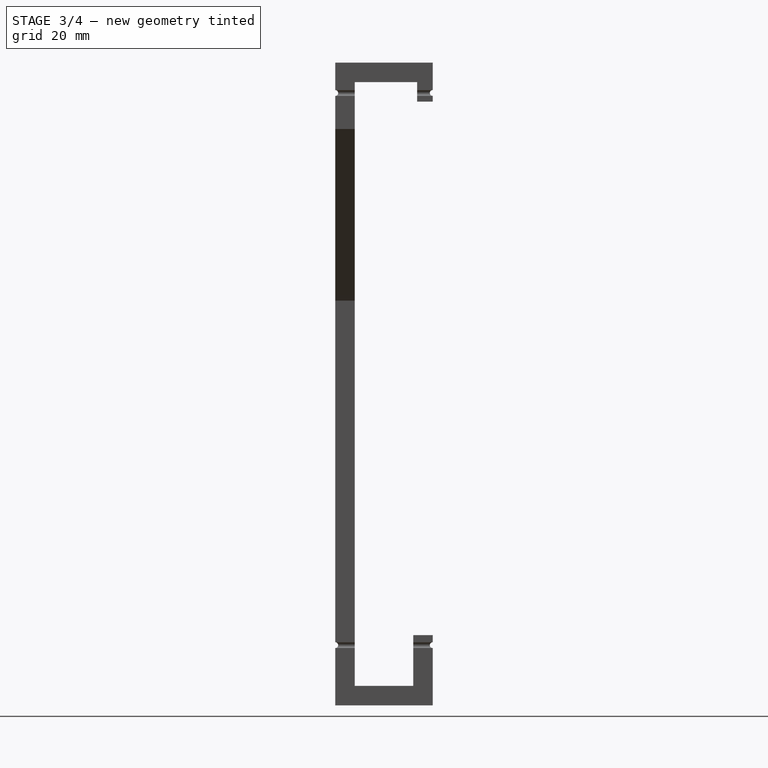
[diagram: stage 3 of 4 — right view after this stage's code; geometry added in this stage tinted green]
FEATURE [Sketcher::SketchObject] Sketch006
  ArcFitTolerance = 1e-06
  AttachmentSupport = -> [Pocket]
  ExternalGeometry = -> [Pocket]
  FullyConstrained = false
  MakeInternals = false
  MapMode = 5
  Placement = pos=(0,-4e-16,-2) rot=(0,0,1;3.14159rad)
  sketch-geometry (6):
    g0: Circle CenterX=-68.25 CenterY=2.5 CenterZ=0 NormalX=0 NormalY=0 NormalZ=1 AngleXU=0 Radius=1.02315
    g1: Circle CenterX=-21.75 CenterY=2.5 CenterZ=0 NormalX=0 NormalY=0 NormalZ=1 AngleXU=0 Radius=1.52507
    g2: LineSegment [constr] StartX=-68.25 StartY=2.5 StartZ=0 EndX=-21.75 EndY=2.5 EndZ=0
    g3: GeomPoint [constr] X=-37.5 Y=2.5 Z=0
    g4: LineSegment [constr] StartX=-68.25 StartY=2.5 StartZ=0 EndX=-52.5 EndY=0 EndZ=0
    g5: LineSegment [constr] StartX=-37.5 StartY=0 StartZ=0 EndX=-21.75 EndY=2.5 EndZ=0
  constraints (11):
    c: Coincident(g2,g0)
    c: Coincident(g2,g1)
    c: Horizontal(g2)
    c: PointOnObject(g3,g2)
    c: Symmetric(g-4,g-3,g3)
    c: DistanceX(g2,g2) = 46.5
    c: Coincident(g4,g-5)
    c: Coincident(g5,g-3)
    c: Coincident(g5,g1)
    c: Equal(g5,g4)
    c: Coincident(g4,g0)
FEATURE [PartDesign::Hole] Hole
  BaseFeature = -> Pocket
  CustomThreadClearance = 0
  Depth = 378.805
  DepthType = 1
  Diameter = 2
  DrillForDepth = false
  DrillPoint = 1
  DrillPointAngle = 118
  HoleCutCountersinkAngle = 90
  HoleCutCustomValues = false
  HoleCutDepth = 0
  HoleCutDiameter = 4
  HoleCutType = 2
  ModelThread = false
  Placement = pos=(0,0,0) rot=(1,0,0;1.5708rad)
  Profile = -> Sketch006
  Refine = true
  Suppressed = false
  Tapered = true
  TaperedAngle = 90
  ThreadClass = 0
  ThreadDepth = 378.805
  ThreadDepthType = 0
  ThreadDirection = 0
  ThreadFit = 0
  ThreadSize = 0
  ThreadType = 0
  Threaded = false
  UseCustomThreadClearance = false
FEATURE [Sketcher::SketchObject] Sketch007
  ArcFitTolerance = 1e-06
  AttachmentSupport = -> [Hole]
  ExternalGeometry = -> [Hole]
  FullyConstrained = true
  MakeInternals = false
  MapMode = 5
  Placement = pos=(87.9801,2.52e-13,3.488e-13) rot=(0.707107,0,0.707107;3.14159rad)
  sketch-geometry (4):
    g0: Circle CenterX=8.44077 CenterY=5 CenterZ=0 NormalX=0 NormalY=0 NormalZ=1 AngleXU=0 Radius=0.75
    g1: Circle CenterX=8.44077 CenterY=-20 CenterZ=0 NormalX=0 NormalY=0 NormalZ=1 AngleXU=0 Radius=0.75
    g2: Circle CenterX=150 CenterY=-20 CenterZ=0 NormalX=0 NormalY=0 NormalZ=1 AngleXU=0 Radius=0.75
    g3: Circle CenterX=150 CenterY=5 CenterZ=0 NormalX=0 NormalY=0 NormalZ=1 AngleXU=0 Radius=0.75
  constraints (8):
    c: Symmetric(g-7,g-7,g0)
    c: PointOnObject(g-7,g0)
    c: Symmetric(g-8,g-8,g1)
    c: PointOnObject(g-8,g1)
    c: Symmetric(g-5,g-5,g2)
    c: PointOnObject(g-5,g2)
    c: Symmetric(g-6,g-6,g3)
    c: PointOnObject(g-6,g3)
FEATURE [PartDesign::Pocket] Pocket001
  BaseFeature = -> Hole
  Direction = (-1,-2.9e-15,-4e-15)
  Length = 5
  Length2 = 5
  Placement = pos=(0,0,0) rot=(1,0,0;1.5708rad)
  Profile = -> Sketch007
  ReferenceAxis = -> Sketch007 [N_Axis]
  Refine = true
  Suppressed = false
  Type = 1
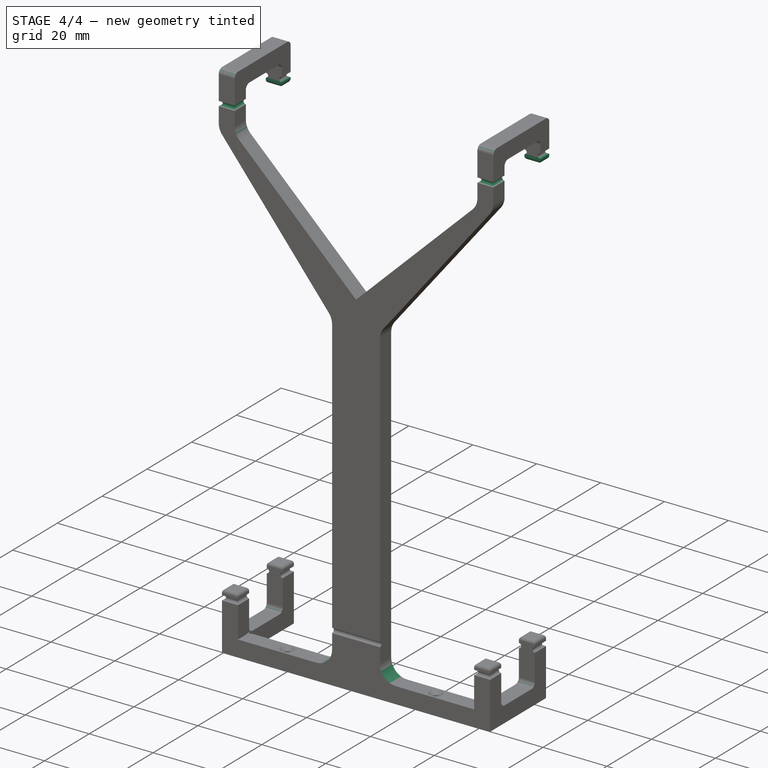
[diagram: stage 4 of 4 — iso view after this stage's code; geometry added in this stage tinted green]
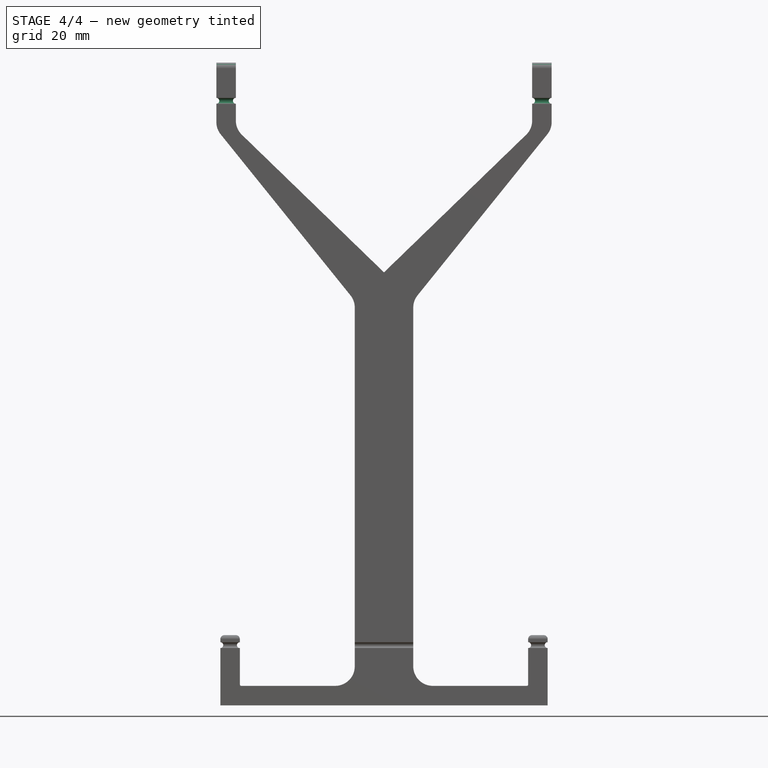
[diagram: stage 4 of 4 — front view after this stage's code; geometry added in this stage tinted green]
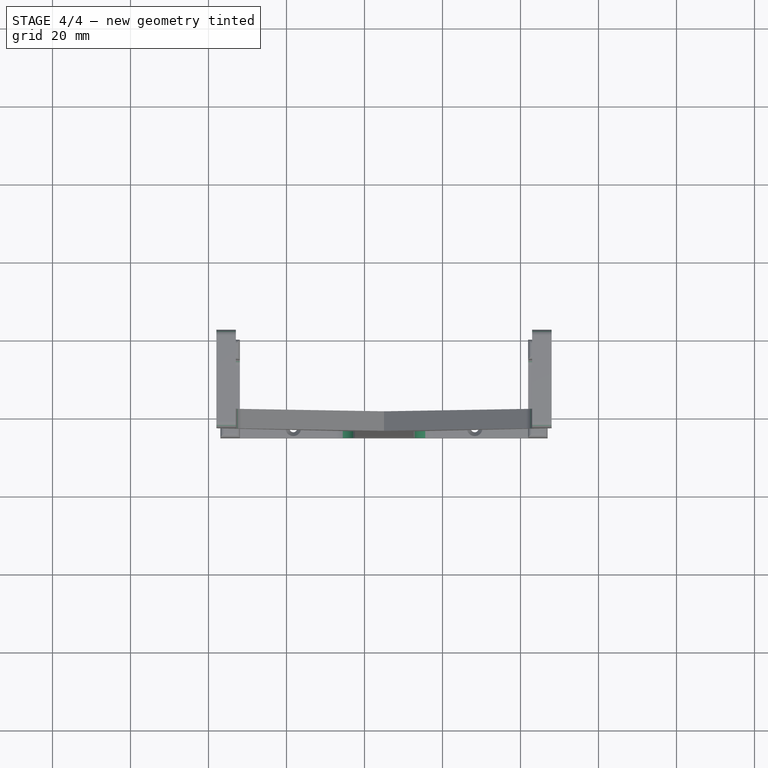
[diagram: stage 4 of 4 — top view after this stage's code; geometry added in this stage tinted green]
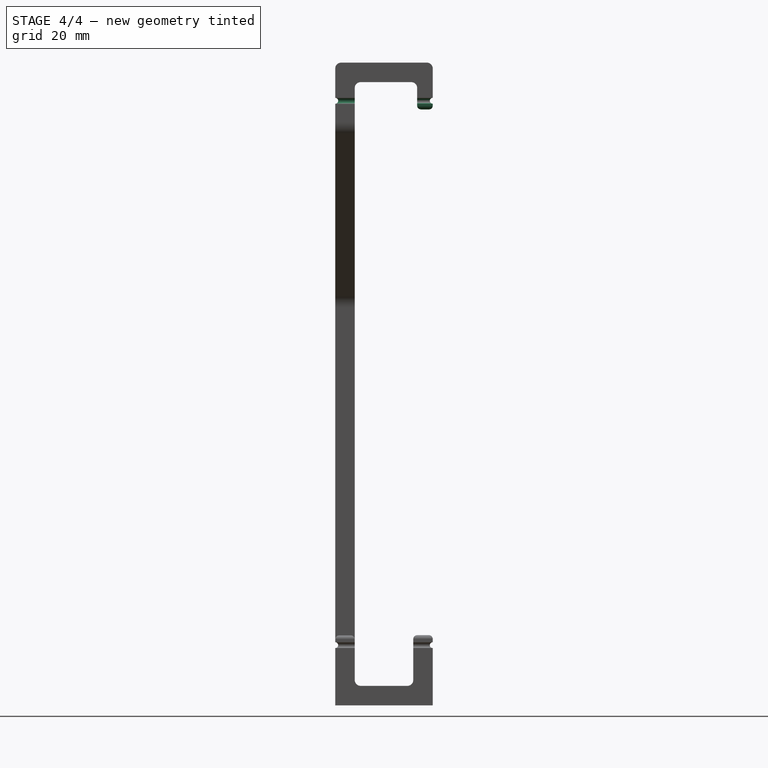
[diagram: stage 4 of 4 — right view after this stage's code; geometry added in this stage tinted green]
FEATURE [PartDesign::Fillet] Fillet
  Base = -> Pocket001 [Edge94,?Edge105,Edge96,?Edge160,Edge134,Edge130,Edge158,Edge106]
  BaseFeature = -> Pocket001
  Placement = pos=(0,0,0) rot=(1,0,0;1.5708rad)
  Radius = 5
  Refine = true
  SupportTransform = false
  Suppressed = false
  UseAllEdges = false
FEATURE [PartDesign::Fillet] Fillet001
  Base = -> Fillet [Edge202,Edge209,Edge208,Edge204,Edge18,Edge27,Edge93,Edge120,Edge183,Edge150,Edge149,Edge188]
  BaseFeature = -> Fillet
  Placement = pos=(0,0,0) rot=(1,0,0;1.5708rad)
  Radius = 1.5
  Refine = true
  SupportTransform = false
  Suppressed = false
  UseAllEdges = false
FEATURE [PartDesign::Fillet] Fillet002
  Base = -> Fillet001 [Face106,Face101,Face88,Face109,Face115,Face98]
  BaseFeature = -> Fillet001
  Placement = pos=(0,0,0) rot=(1,0,0;1.5708rad)
  Radius = 1
  Refine = true
  SupportTransform = false
  Suppressed = false
  UseAllEdges = false
FEATURE [PartDesign::Body] Body001  label="Ständer"
  AllowCompound = false
  Group = -> [ShapeBinder,Sketch001,Pad001,Sketch002,Pad002,Sketch003,Pad003,Sketch004,Pad004,Sketch005,Pocket,Sketch006,Hole,Sketch007,Pocket001,Fillet,Fillet001,Fillet002]
  Origin = -> Origin001
  Tip = -> Fillet002
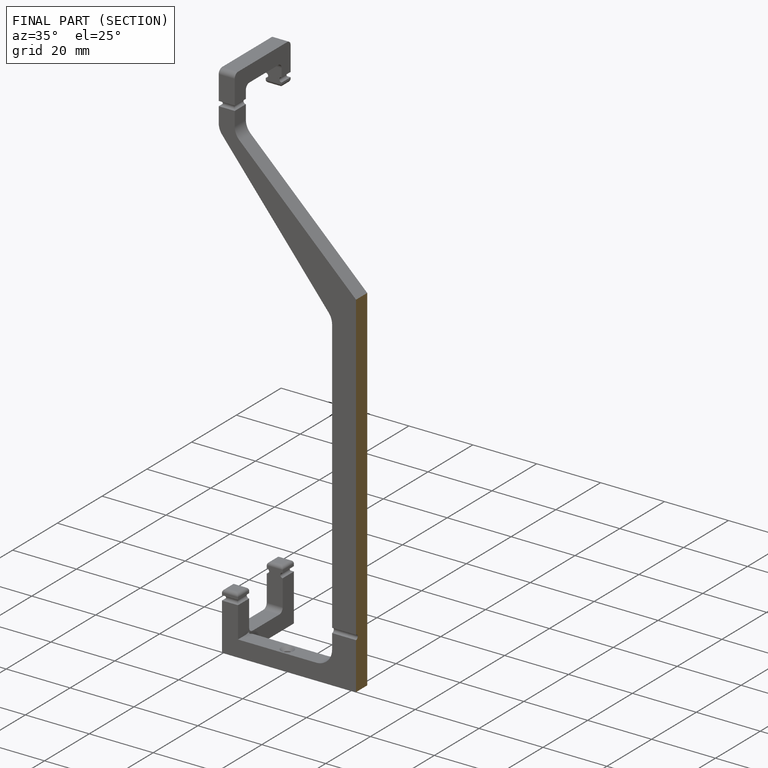
[diagram: finished part — half-section view (interior)]
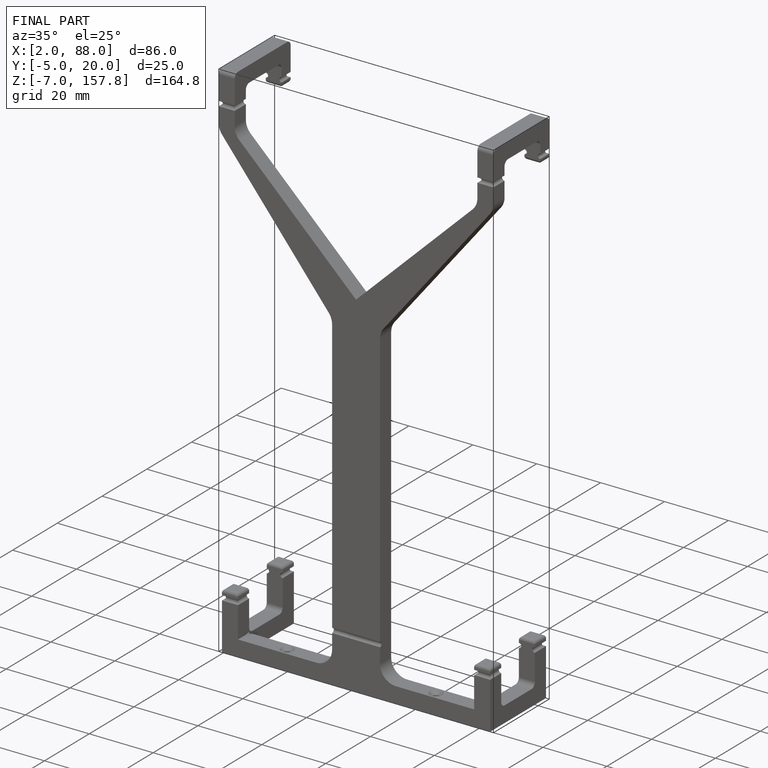
[diagram: finished part — iso view with bounding-box wireframe]
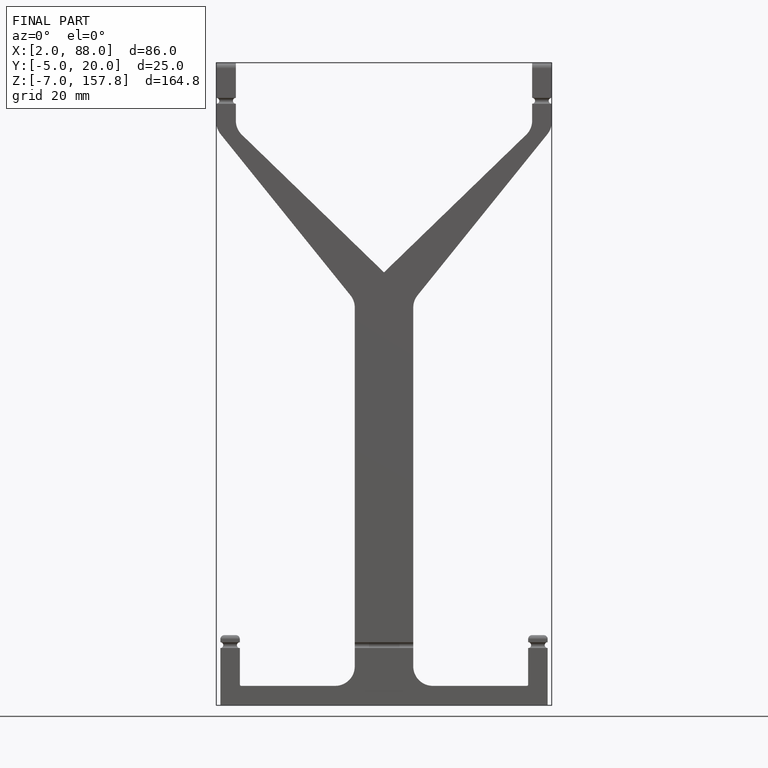
[diagram: finished part — front view with bounding-box wireframe]
